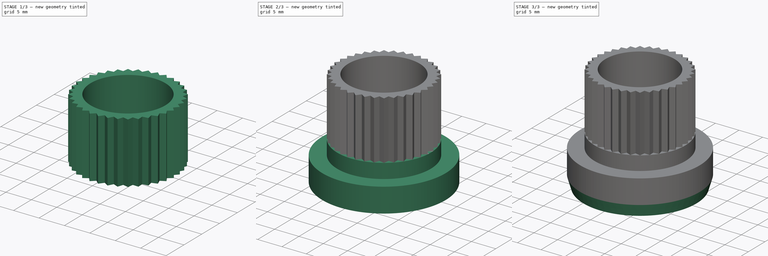
[diagram: build sequence overview — one tinted view per stage of 3, left to right]
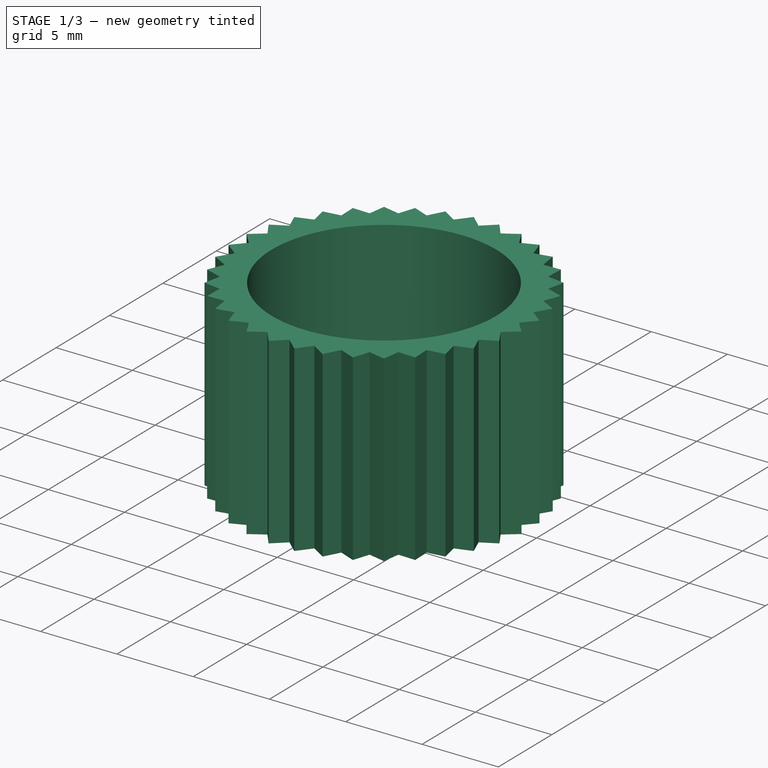
[diagram: stage 1 of 3 — iso view after this stage's code; geometry added in this stage tinted green]
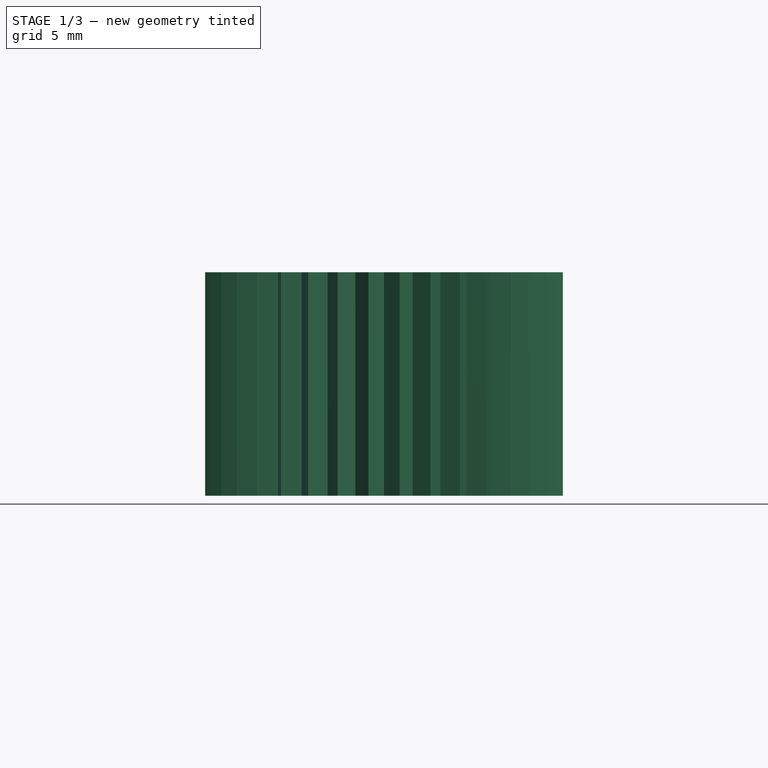
[diagram: stage 1 of 3 — front view after this stage's code; geometry added in this stage tinted green]
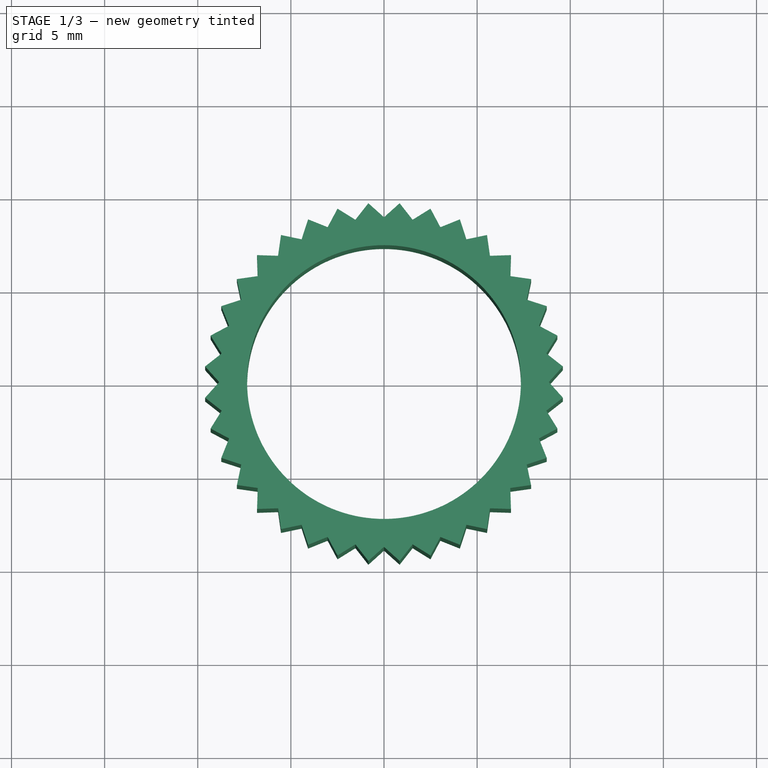
[diagram: stage 1 of 3 — top view after this stage's code; geometry added in this stage tinted green]
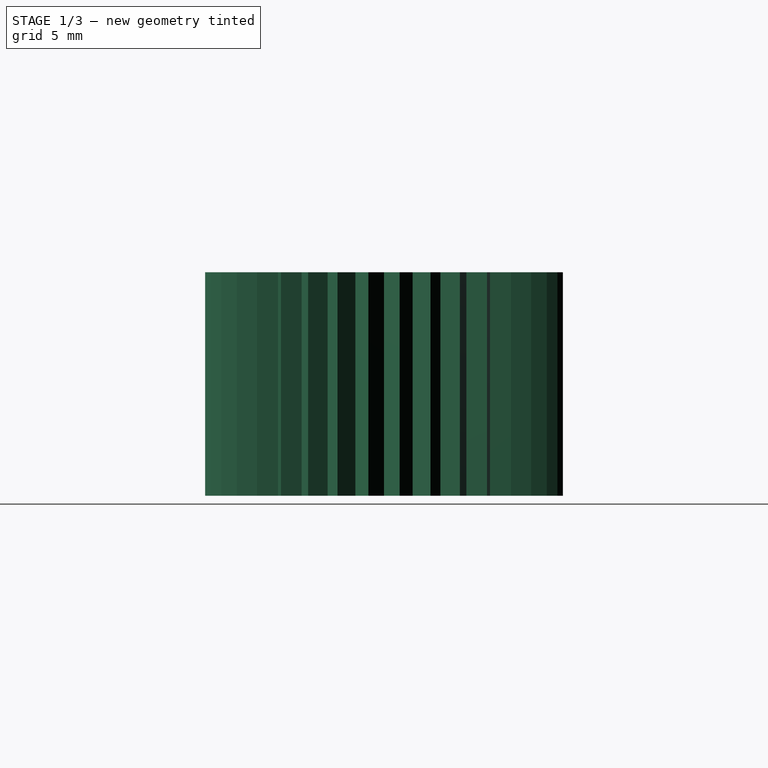
[diagram: stage 1 of 3 — right view after this stage's code; geometry added in this stage tinted green]
FCSTD DOCUMENT  (FreeCAD 0.21R33771 (Git))
Label: HeckertSpeedMovesButton
License: All rights reserved
LicenseURL: http://en.wikipedia.org/wiki/All_rights_reserved
objects: Sketcher::SketchObject×4, PartDesign::Pad×4, PartDesign::Plane×3, PartDesign::PolarPattern×1, PartDesign::Chamfer×1, PartDesign::Body×1, App::Part×1
note: 19 computed .brp shape members not serialized (recipe doc carries the construction recipe); baked Part::Feature solids carry a one-line shape summary decoded from their .brp

FEATURE [Sketcher::SketchObject] Sketch
  FullyConstrained = true
  MapMode = 5
  Support = -> [XY_Plane]
  sketch-geometry (11):
    g0: Circle CenterX=0 CenterY=0 CenterZ=0 NormalX=0 NormalY=0 NormalZ=1 AngleXU=0 Radius=7.35
    g1: Circle CenterX=0 CenterY=0 CenterZ=0 NormalX=0 NormalY=0 NormalZ=1 AngleXU=0 Radius=9.64
    g2: Circle CenterX=0 CenterY=0 CenterZ=0 NormalX=0 NormalY=0 NormalZ=1 AngleXU=0 Radius=8.85
    g3: LineSegment StartX=0 StartY=0 StartZ=0 EndX=0 EndY=8.85 EndZ=0
    g4: LineSegment StartX=0 StartY=0 StartZ=0 EndX=1.53679 EndY=8.71555 EndZ=0
    g5: LineSegment StartX=0 StartY=0 StartZ=0 EndX=0.840181 EndY=9.60332 EndZ=0
    g6: LineSegment StartX=0 StartY=8.85 StartZ=0 EndX=0.840181 EndY=9.60332 EndZ=0
    g7: LineSegment StartX=1.53679 StartY=8.71555 StartZ=0 EndX=0.840181 EndY=9.60332 EndZ=0
    g8: LineSegment StartX=0 StartY=7.35 StartZ=0 EndX=0 EndY=8.85 EndZ=0
    g9: LineSegment StartX=1.27631 StartY=7.23834 StartZ=0 EndX=1.53679 EndY=8.71555 EndZ=0
    g10: ArcOfCircle CenterX=0 CenterY=0 CenterZ=0 NormalX=0 NormalY=0 NormalZ=1 AngleXU=0 Radius=7.35 StartAngle=1.39626 EndAngle=1.5708
  constraints (29):
    c: Coincident(g0,g-1)
    c: Diameter(g0) = 14.7
    c: Coincident(g1,g0)
    c: Diameter(g1) = 19.28
    c: Coincident(g2,g0)
    c: Diameter(g2) = 17.7
    c: Coincident(g3,g0)
    c: PointOnObject(g3,g-2)
    c: Coincident(g4,g0)
    c: Coincident(g5,g0)
    c: PointOnObject(g5,g1)
    c: PointOnObject(g3,g2)
    c: PointOnObject(g4,g2)
    c: Angle(g5,g3) = 0.0872665
    c: Angle(g4,g5) = 0.0872665
    c: Coincident(g6,g3)
    c: Coincident(g6,g5)
    c: Coincident(g7,g4)
    c: Coincident(g7,g6)
    c: Coincident(g8,g6)
    c: Coincident(g9,g7)
    c: Coincident(g10,g0)
    c: PointOnObject(g10,g8)
    c: PointOnObject(g10,g9)
    c: PointOnObject(g10,g0)
    c: PointOnObject(g8,g0)
    c: PointOnObject(g9,g0)
    c: PointOnObject(g8,g3)
    c: PointOnObject(g9,g4)
FEATURE [PartDesign::Pad] Pad
  Direction = (0,0,1)
  Length = 12
  Length2 = 10
  Profile = -> Sketch
  ReferenceAxis = -> Sketch [N_Axis]
  Type = 0
FEATURE [PartDesign::PolarPattern] PolarPattern
  Angle = 360
  Axis = -> Sketch [N_Axis]
  BaseFeature = -> Pad
  Occurrences = 36
  Originals = -> [Pad]
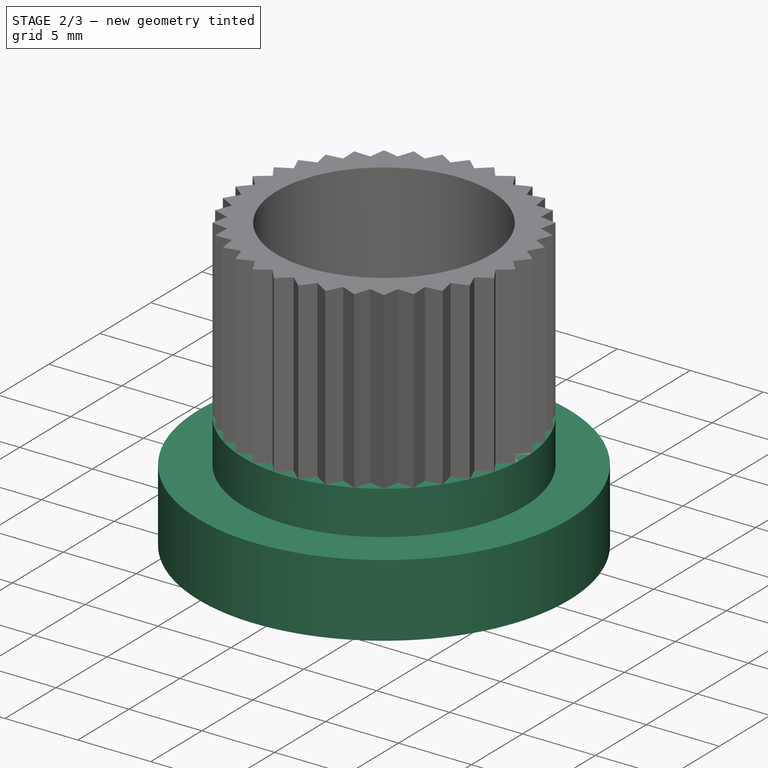
[diagram: stage 2 of 3 — iso view after this stage's code; geometry added in this stage tinted green]
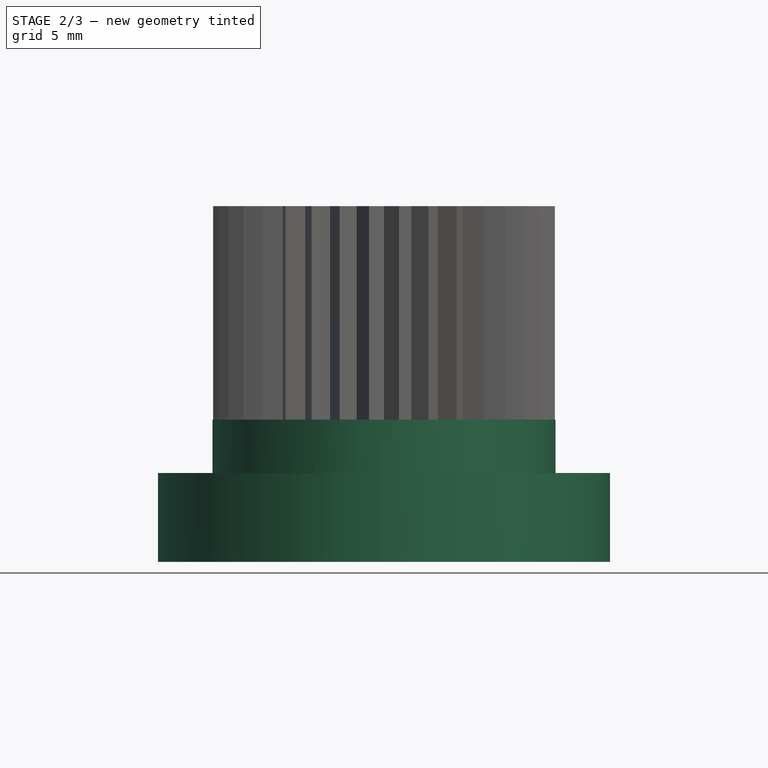
[diagram: stage 2 of 3 — front view after this stage's code; geometry added in this stage tinted green]
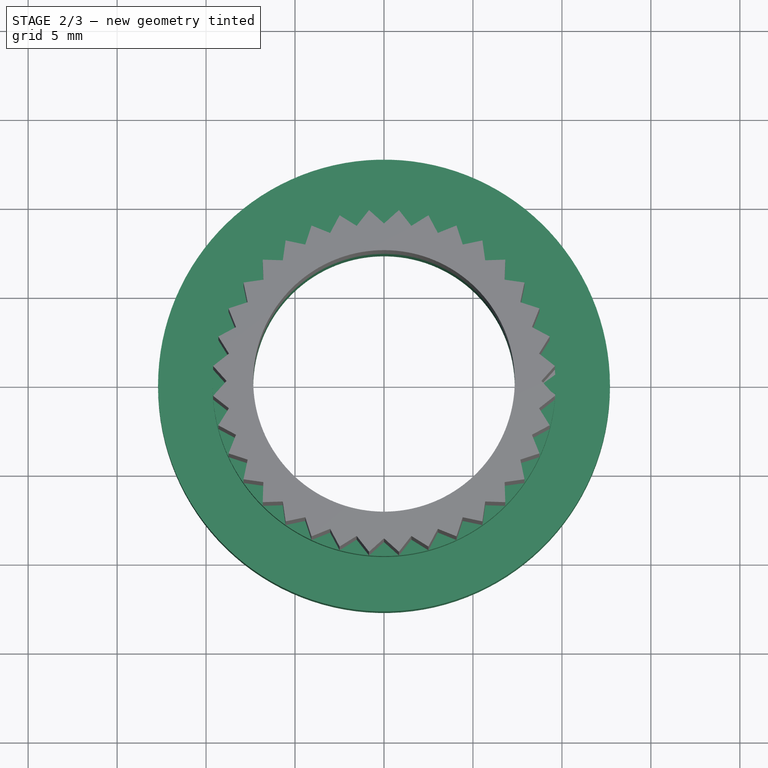
[diagram: stage 2 of 3 — top view after this stage's code; geometry added in this stage tinted green]
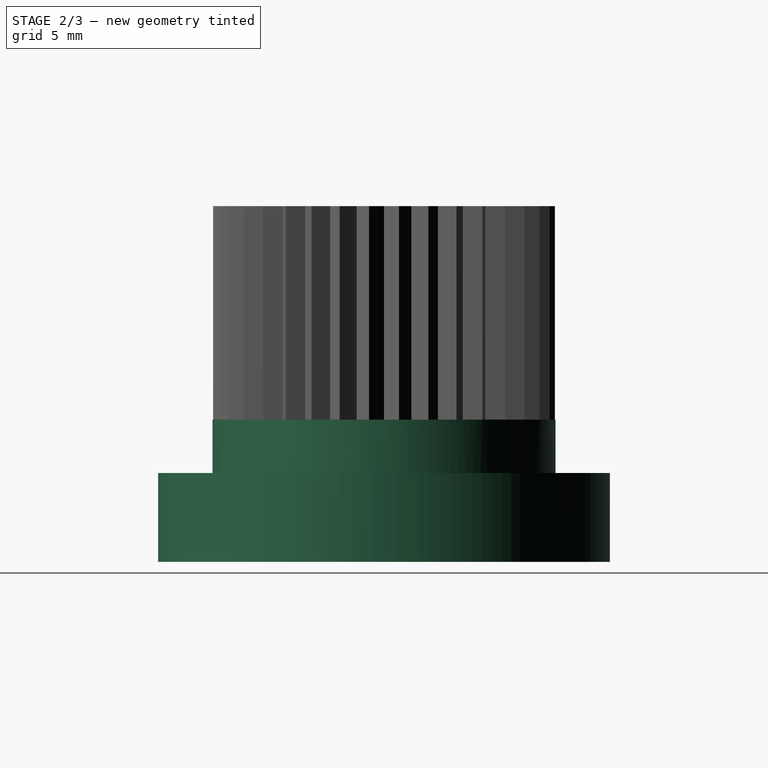
[diagram: stage 2 of 3 — right view after this stage's code; geometry added in this stage tinted green]
FEATURE [PartDesign::Plane] DatumPlane
  Length = 60
  MapMode = 2
  ResizeMode = 0
  Support = -> [PolarPattern]
  Width = 60
FEATURE [Sketcher::SketchObject] Sketch001
  ExternalGeometry = -> [PolarPattern]
  FullyConstrained = true
  MapMode = 5
  Support = -> [DatumPlane]
  sketch-geometry (2):
    g0: Circle CenterX=0 CenterY=0 CenterZ=0 NormalX=0 NormalY=0 NormalZ=1 AngleXU=0 Radius=7.35
    g1: Circle CenterX=0 CenterY=0 CenterZ=0 NormalX=0 NormalY=0 NormalZ=1 AngleXU=0 Radius=9.64
  constraints (4):
    c: Coincident(g0,g-1)
    c: PointOnObject(g-3,g0)
    c: Coincident(g1,g0)
    c: PointOnObject(g-4,g1)
FEATURE [PartDesign::Pad] Pad001
  BaseFeature = -> PolarPattern
  Direction = (0,0,1)
  Length = 3
  Length2 = 10
  Profile = -> Sketch001
  ReferenceAxis = -> Sketch001 [N_Axis]
  Reversed = true
  Type = 0
FEATURE [PartDesign::Plane] DatumPlane001
  Length = 60
  MapMode = 5
  Placement = pos=(0,0,-3) rot=(1,0,0;3.14159rad)
  ResizeMode = 0
  Support = -> [Pad001]
  Width = 60
FEATURE [Sketcher::SketchObject] Sketch002
  ExternalGeometry = -> [Pad001]
  FullyConstrained = false
  MapMode = 5
  Placement = pos=(0,0,-3) rot=(1,0,0;3.14159rad)
  Support = -> [Pad001]
  sketch-geometry (2):
    g0: Circle CenterX=0 CenterY=0 CenterZ=0 NormalX=0 NormalY=0 NormalZ=1 AngleXU=0 Radius=7.35
    g1: Circle CenterX=0 CenterY=0 CenterZ=0 NormalX=0 NormalY=0 NormalZ=1 AngleXU=0 Radius=12.7
  constraints (3):
    c: Coincident(g0,g-3)
    c: Coincident(g1,g0)
    c: Diameter(g1) = 25.4
FEATURE [PartDesign::Pad] Pad002
  BaseFeature = -> Pad001
  Direction = (0,0,-1)
  Length = 5
  Length2 = 10
  Profile = -> Sketch002
  ReferenceAxis = -> Sketch002 [N_Axis]
  Type = 0
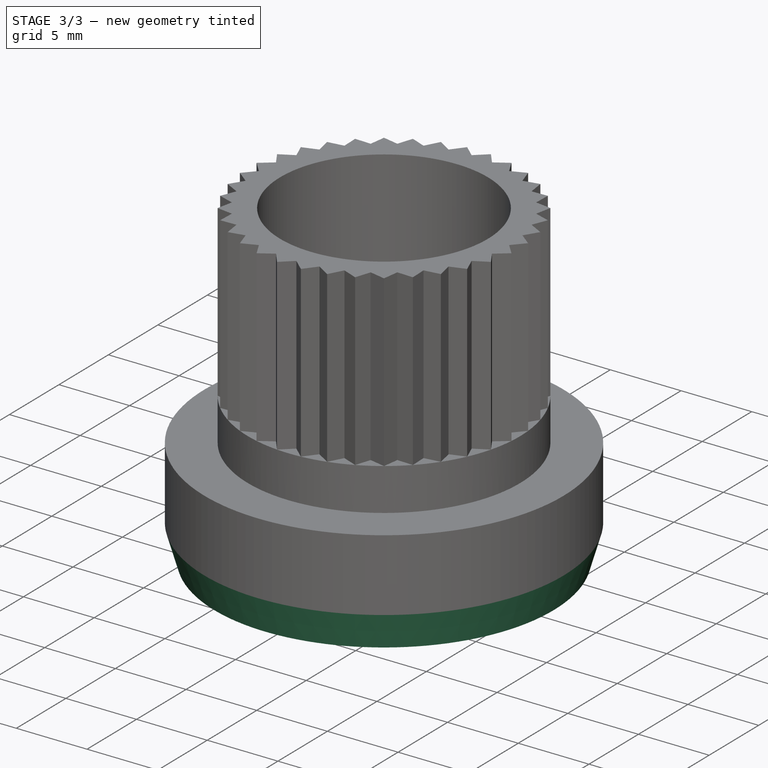
[diagram: stage 3 of 3 — iso view after this stage's code; geometry added in this stage tinted green]
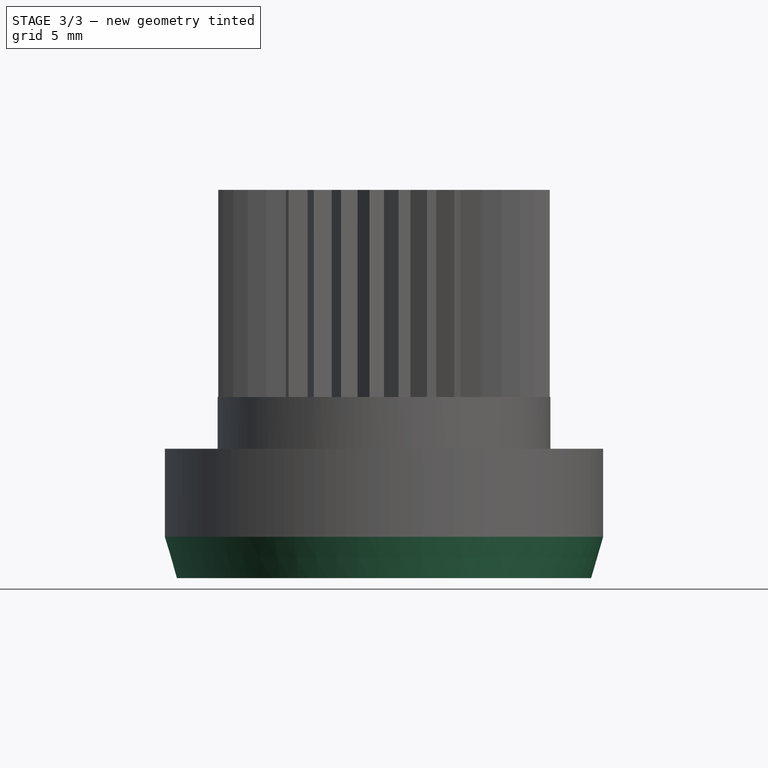
[diagram: stage 3 of 3 — front view after this stage's code; geometry added in this stage tinted green]
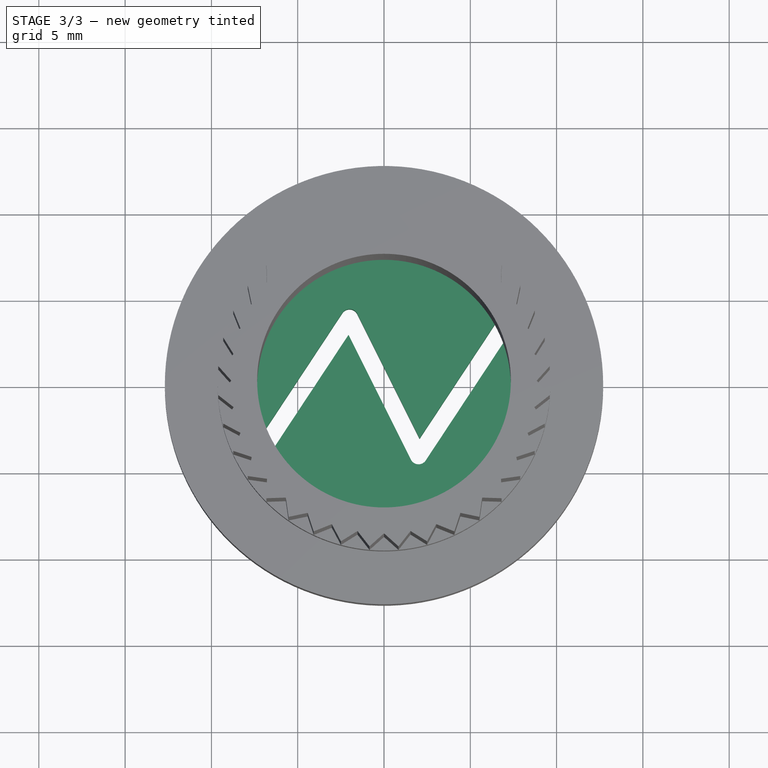
[diagram: stage 3 of 3 — top view after this stage's code; geometry added in this stage tinted green]
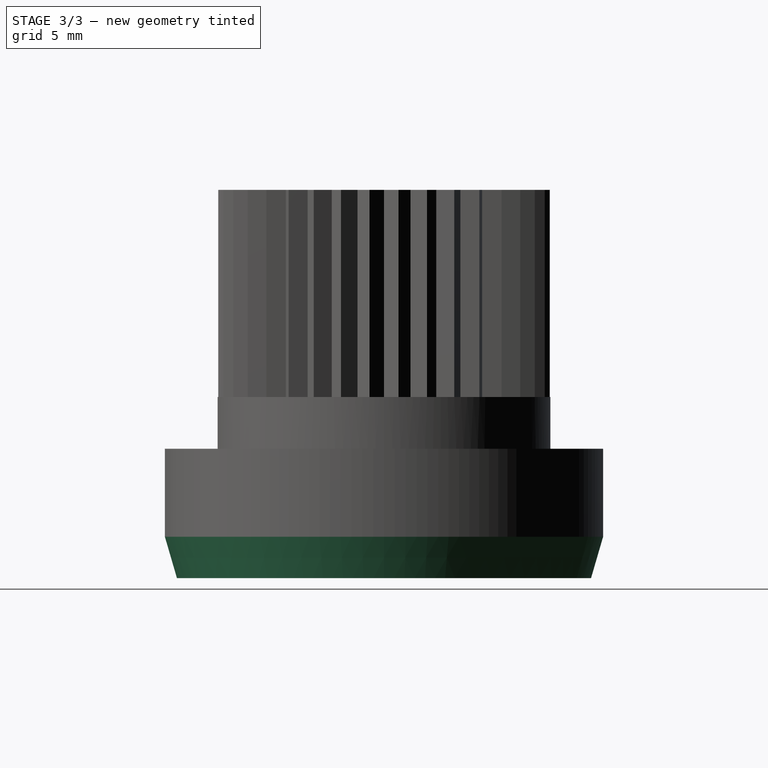
[diagram: stage 3 of 3 — right view after this stage's code; geometry added in this stage tinted green]
FEATURE [PartDesign::Plane] DatumPlane002
  Length = 60
  MapMode = 5
  Placement = pos=(0,0,-8) rot=(1,0,0;3.14159rad)
  ResizeMode = 0
  Support = -> [Pad002]
  Width = 60
FEATURE [Sketcher::SketchObject] Sketch003
  ExternalGeometry = -> [Pad002]
  FullyConstrained = false
  MapMode = 5
  Placement = pos=(0,0,-8) rot=(1,0,0;3.14159rad)
  Support = -> [DatumPlane002]
  sketch-geometry (27):
    g0: LineSegment StartX=-9.28 StartY=4 StartZ=0 EndX=9.28 EndY=4 EndZ=0
    g1: LineSegment StartX=9.28 StartY=4 StartZ=0 EndX=9.28 EndY=-4 EndZ=0
    g2: LineSegment StartX=9.28 StartY=-4 StartZ=0 EndX=-9.28 EndY=-4 EndZ=0
    g3: LineSegment StartX=-9.28 StartY=-4 StartZ=0 EndX=-9.28 EndY=4 EndZ=0
    g4: GeomPoint X=-7.28 Y=4 Z=0
    g5: LineSegment StartX=-9.28 StartY=0 StartZ=0 EndX=-7.28 EndY=4 EndZ=0
    g6: LineSegment StartX=-7.28 StartY=4 StartZ=0 EndX=-1.99797 EndY=-4 EndZ=0
    g7: LineSegment StartX=-1.99797 StartY=-4 StartZ=0 EndX=2.00203 EndY=4 EndZ=0
    g8: LineSegment StartX=2.00203 StartY=4 StartZ=0 EndX=7.28 EndY=-4 EndZ=0
    g9: LineSegment StartX=7.28 StartY=-4 StartZ=0 EndX=9.28 EndY=0 EndZ=0
    g10: ArcOfCircle CenterX=-9.28 CenterY=0 CenterZ=0 NormalX=0 NormalY=0 NormalZ=1 AngleXU=0 Radius=0.5 StartAngle=2.67795 EndAngle=5.81954
    g11: ArcOfCircle CenterX=-7.28 CenterY=4 CenterZ=0 NormalX=0 NormalY=0 NormalZ=1 AngleXU=0 Radius=0.5 StartAngle=0.58355 EndAngle=2.67795
    g12: ArcOfCircle CenterX=-1.99797 CenterY=-4 CenterZ=0 NormalX=0 NormalY=0 NormalZ=1 AngleXU=0 Radius=0.5 StartAngle=3.72514 EndAngle=5.81954
    g13: ArcOfCircle CenterX=7.28 CenterY=-4 CenterZ=0 NormalX=0 NormalY=0 NormalZ=1 AngleXU=0 Radius=0.5 StartAngle=3.72479 EndAngle=5.81954
    g14: ArcOfCircle CenterX=9.28 CenterY=0 CenterZ=0 NormalX=0 NormalY=0 NormalZ=1 AngleXU=0 Radius=0.5 StartAngle=5.81954 EndAngle=8.96113
    g15: LineSegment StartX=-9.72721 StartY=0.223607 StartZ=0 EndX=-7.72721 EndY=4.22361 EndZ=0
    g16: LineSegment StartX=-8.83279 StartY=-0.223607 StartZ=0 EndX=-7.22008 EndY=3.0018 EndZ=0
    g17: LineSegment StartX=-6.86274 StartY=4.27549 StartZ=0 EndX=-2.05788 EndY=-3.0018 EndZ=0
    g18: LineSegment StartX=-2.41522 StartY=-4.27549 StartZ=0 EndX=-7.22008 EndY=3.0018 EndZ=0
    g19: LineSegment StartX=-2.05788 StartY=-3.0018 StartZ=0 EndX=1.55482 EndY=4.22361 EndZ=0
    g20: LineSegment StartX=-1.55075 StartY=-4.22361 StartZ=0 EndX=2.06179 EndY=3.00148 EndZ=0
    g21: LineSegment StartX=2.41939 StartY=4.27535 StartZ=0 EndX=7.22024 EndY=-3.00148 EndZ=0
    g22: LineSegment StartX=2.06179 StartY=3.00148 StartZ=0 EndX=6.86265 EndY=-4.27535 EndZ=0
    g23: LineSegment StartX=7.22024 StartY=-3.00148 StartZ=0 EndX=8.83279 EndY=0.223607 EndZ=0
    g24: LineSegment StartX=7.72721 StartY=-4.22361 StartZ=0 EndX=9.72721 EndY=-0.223607 EndZ=0
    g25: ArcOfCircle CenterX=2.00203 CenterY=4 CenterZ=0 NormalX=0 NormalY=0 NormalZ=1 AngleXU=0 Radius=0.5 StartAngle=0.583196 EndAngle=2.67795
    g26: Circle CenterX=0 CenterY=0 CenterZ=0 NormalX=0 NormalY=0 NormalZ=1 AngleXU=0 Radius=12.7
  constraints (53):
    c: Coincident(g0,g1)
    c: Coincident(g1,g2)
    c: Coincident(g2,g3)
    c: Coincident(g3,g0)
    c: Horizontal(g0)
    c: Horizontal(g2)
    c: Vertical(g1)
    c: Vertical(g3)
    c: Symmetric(g0,g1,g-3)
    c: DistanceY(g3,g3) = 8
    c: DistanceX(g2,g2) = 18.56
    c: PointOnObject(g4,g0)
    c: DistanceX(g0,g4) = 2
    c: PointOnObject(g5,g3)
    c: Coincident(g5,g4)
    c: PointOnObject(g5,g-1)
    c: Coincident(g6,g4)
    c: PointOnObject(g6,g2)
    c: Angle(g5,g6) = 1.0472
    c: Coincident(g7,g6)
    c: PointOnObject(g7,g0)
    c: Angle(g7,g6) = 1.0472
    c: Coincident(g8,g7)
    c: PointOnObject(g8,g2)
    c: DistanceX(g8,g1) = 2
    c: Coincident(g9,g8)
    c: PointOnObject(g9,g1)
    c: PointOnObject(g9,g-1)
    c: Coincident(g10,g5)
    c: Coincident(g11,g4)
    c: Coincident(g14,g9)
    c: Equal(g10, g11-g14) x4
    c: Diameter(g10) = 1
    c: Coincident(g12,g6)
    c: Coincident(g8,g13)
    c: Tangent(g10,g15) = 1.5708
    c: Tangent(g10,g16) = -1.5708
    c: Tangent(g11,g15) = 1.5708
    c: Tangent(g11,g17) = 1.5708
    c: Coincident(g16,g18)
    c: Coincident(g17,g19)
    c: Tangent(g12,g18) = 1.5708
    c: Tangent(g12,g20) = -1.5708
    c: Coincident(g25,g19) = 1.5708
    c: Tangent(g25,g21) = 1.5708
    c: Coincident(g20,g22)
    c: Tangent(g13,g22) = -1.5708
    c: Coincident(g21,g23)
    c: Tangent(g14,g23) = 1.5708
    c: Tangent(g14,g24) = -1.5708
    c: Coincident(g26,g-3)
    c: Tangent(g26,g-3)
    c: Tangent(g13,g24) = -1.5708
FEATURE [PartDesign::Pad] Pad003
  BaseFeature = -> Pad002
  Direction = (0,0,-1)
  Length = 2.5
  Length2 = 10
  Profile = -> Sketch003
  ReferenceAxis = -> Sketch003 [N_Axis]
  Type = 0
FEATURE [PartDesign::Chamfer] Chamfer
  Angle = 45
  Base = -> Pad003 [Edge412]
  BaseFeature = -> Pad003
  ChamferType = 1
  FlipDirection = false
  Size = 2.4
  Size2 = 0.7
  SupportTransform = false
  UseAllEdges = false
FEATURE [PartDesign::Body] Body  label="Zawartość"
  Group = -> [Sketch,Pad,PolarPattern,DatumPlane,Sketch001,Pad001,DatumPlane001,Sketch002,Pad002,DatumPlane002,Sketch003,Pad003,Chamfer]
  Origin = -> Origin
  Tip = -> Chamfer
FEATURE [App::Part] Part
  Group = -> [Body]
  Origin = -> Origin001
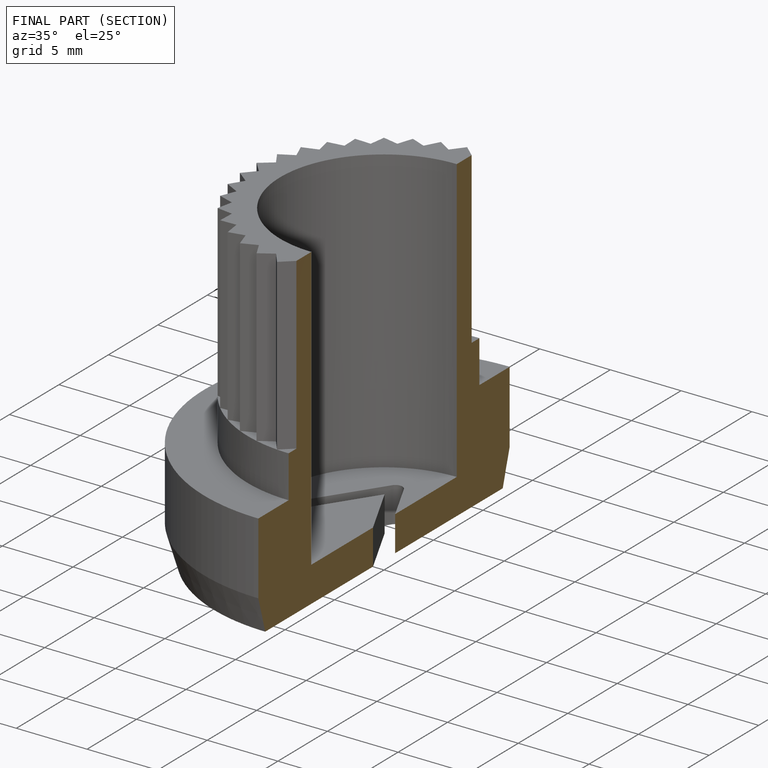
[diagram: finished part — half-section view (interior)]
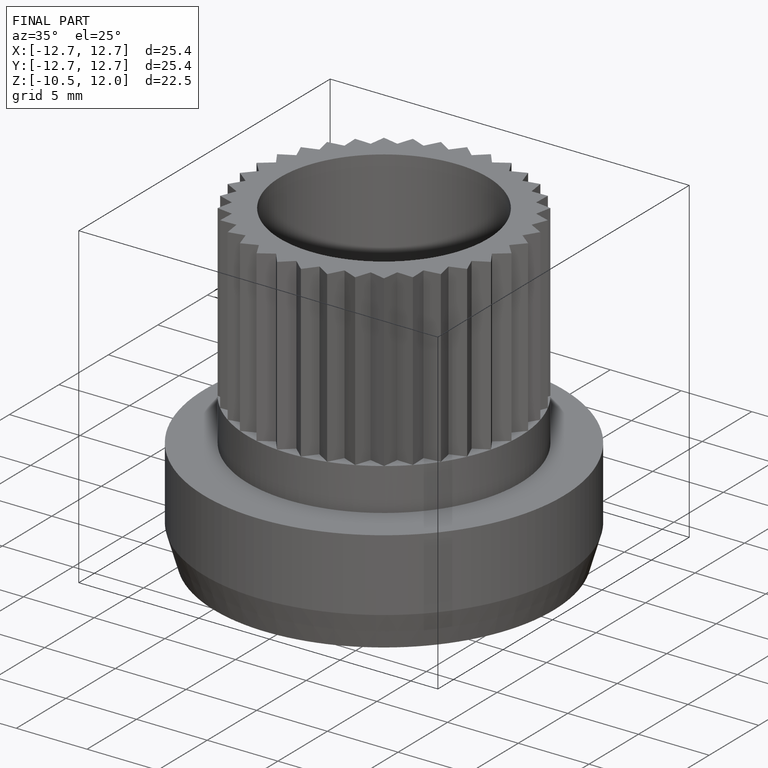
[diagram: finished part — iso view with bounding-box wireframe]
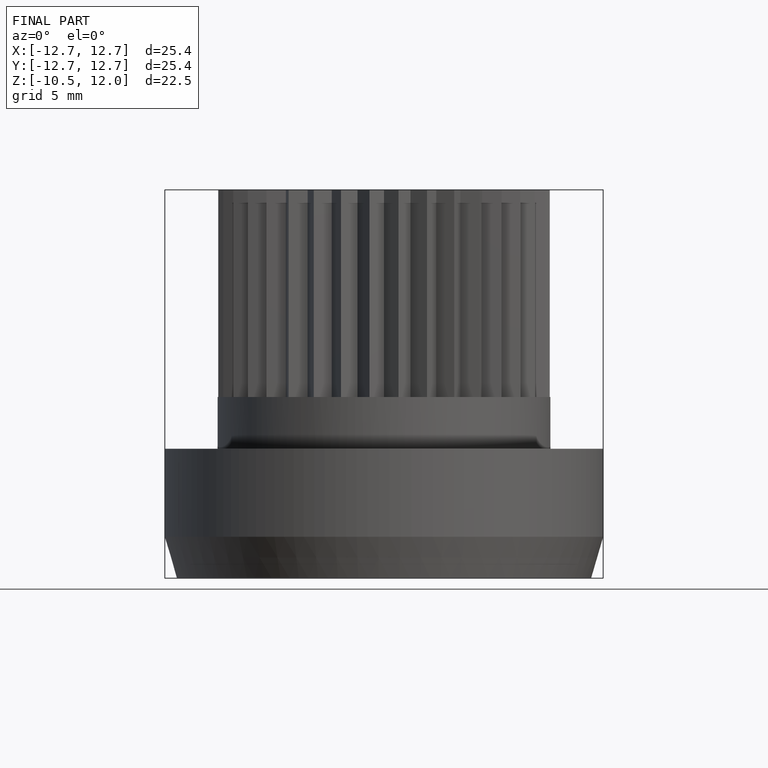
[diagram: finished part — front view with bounding-box wireframe]
